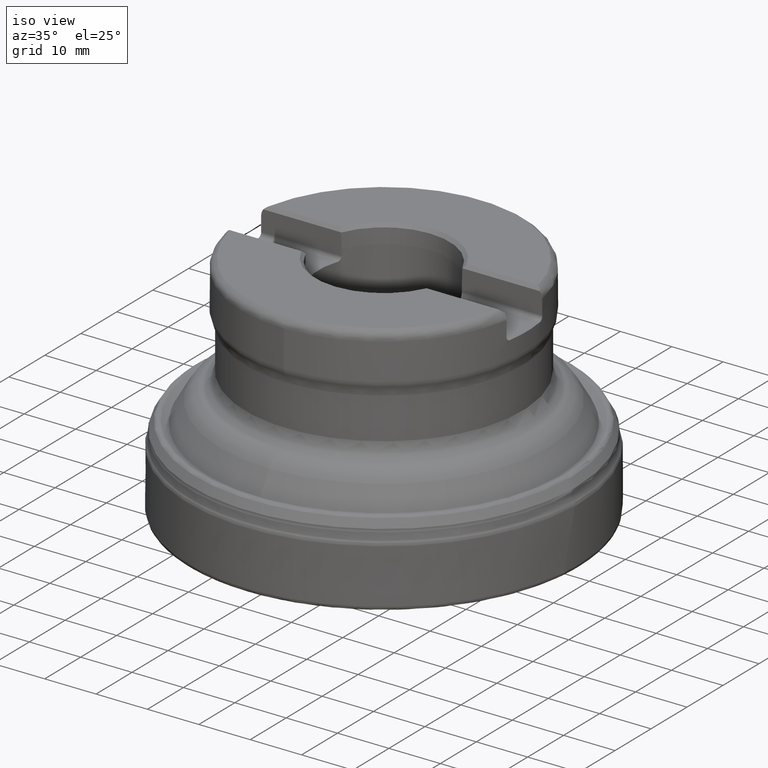
[diagram: clean part render]
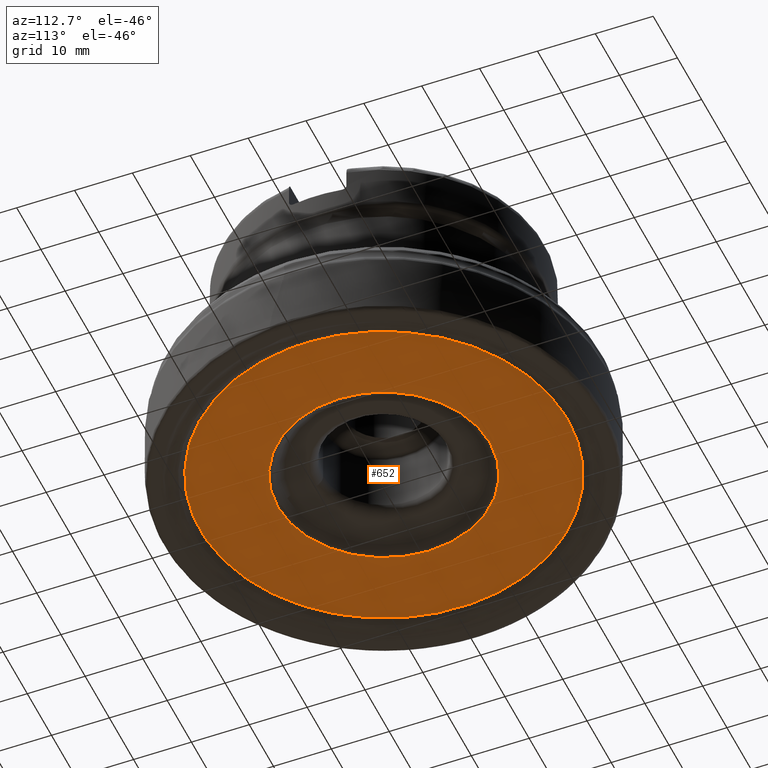
[diagram: tour spotlight — one face highlighted and labeled with its STEP entity id]
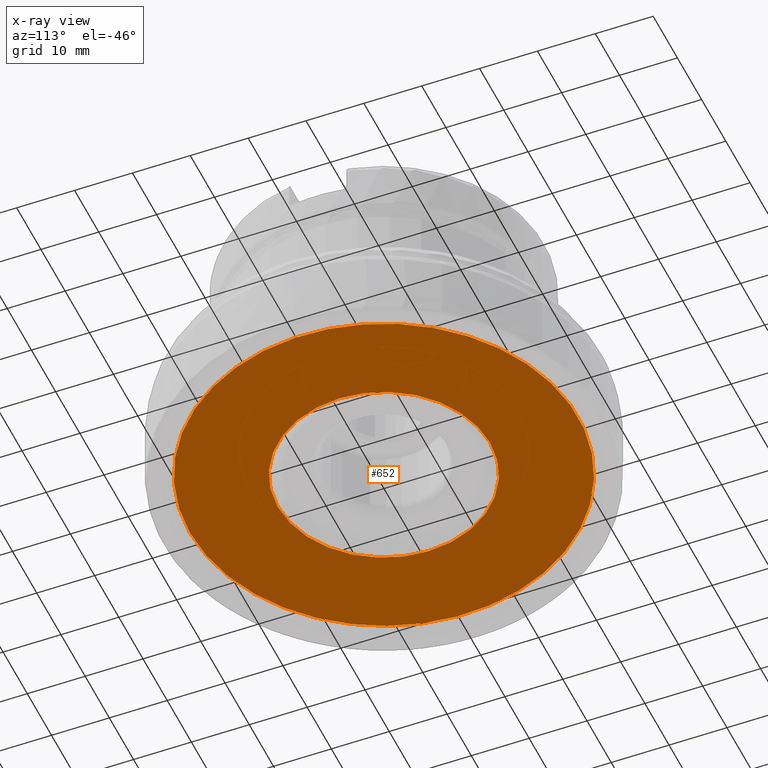
[diagram: x-ray of the same camera — body ghosted, this tour face saturated]
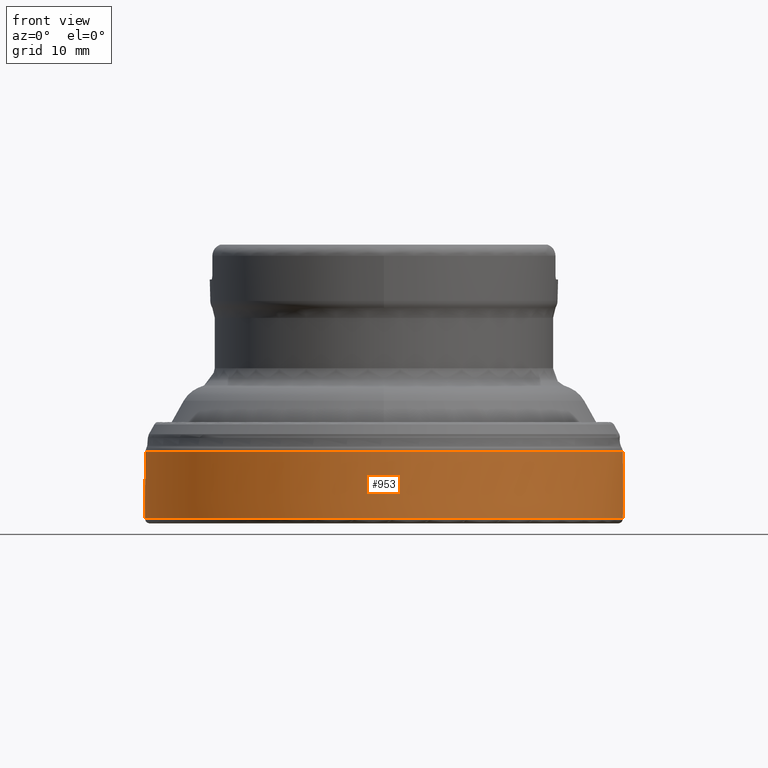
[diagram: tour spotlight — one face highlighted and labeled with its STEP entity id]
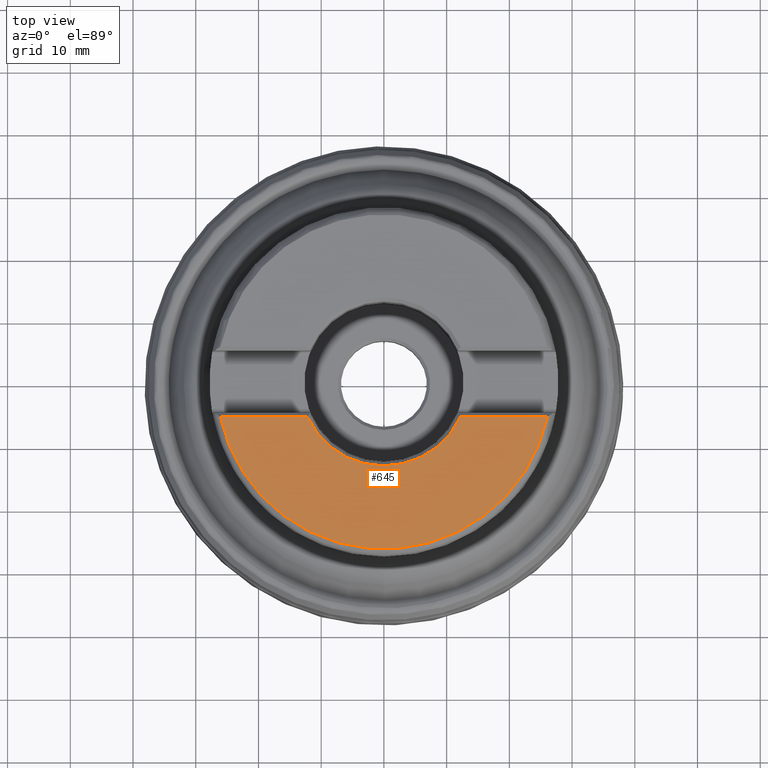
[diagram: tour spotlight — one face highlighted and labeled with its STEP entity id]
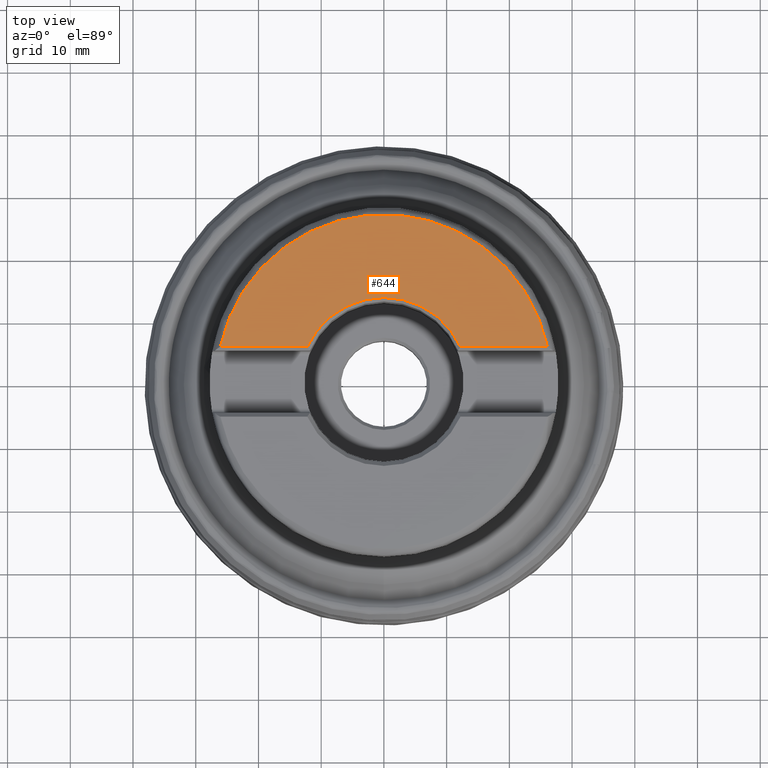
[diagram: tour spotlight — one face highlighted and labeled with its STEP entity id]
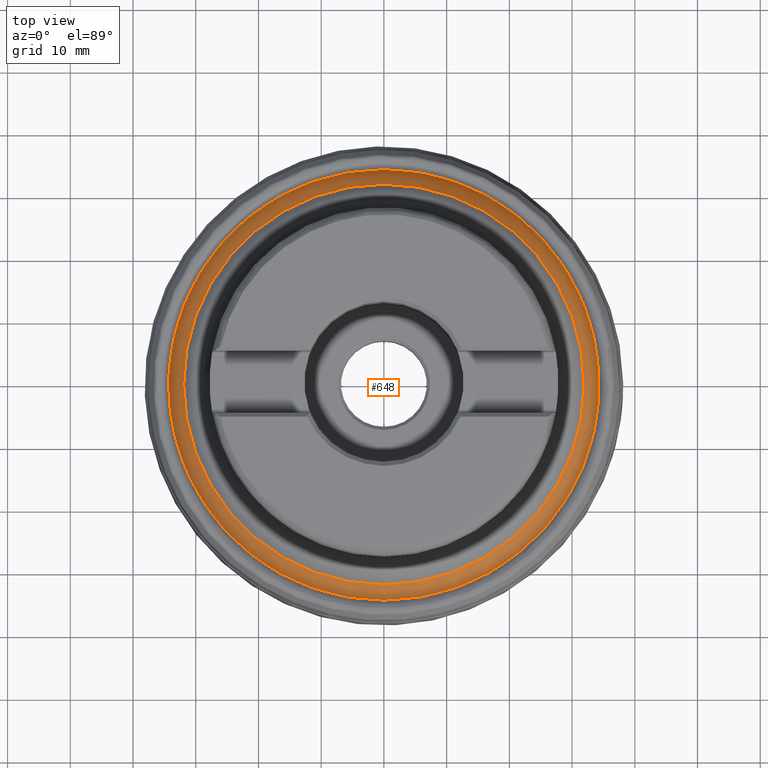
[diagram: tour spotlight — one face highlighted and labeled with its STEP entity id]
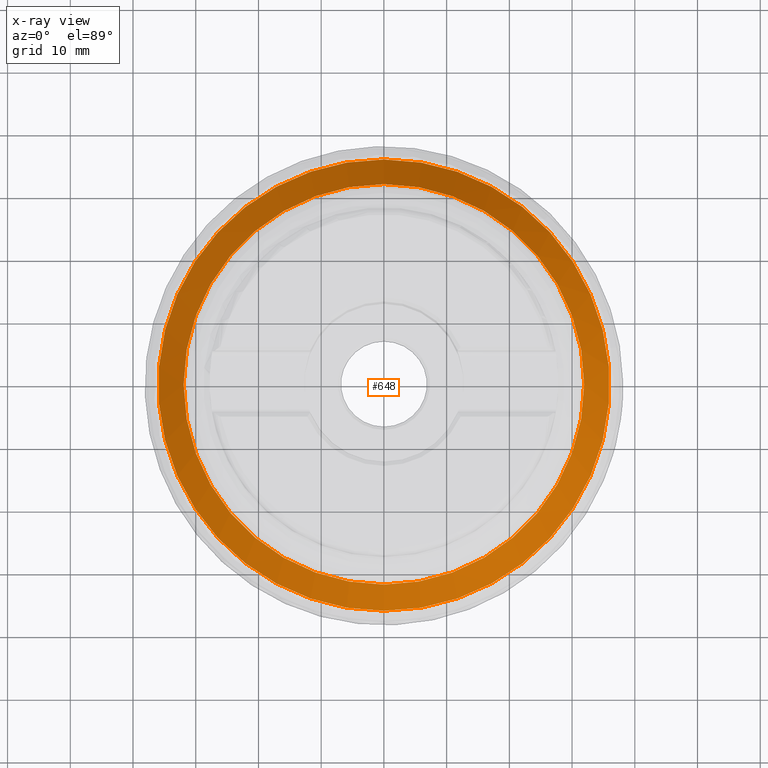
[diagram: x-ray of the same camera — body ghosted, this tour face saturated]
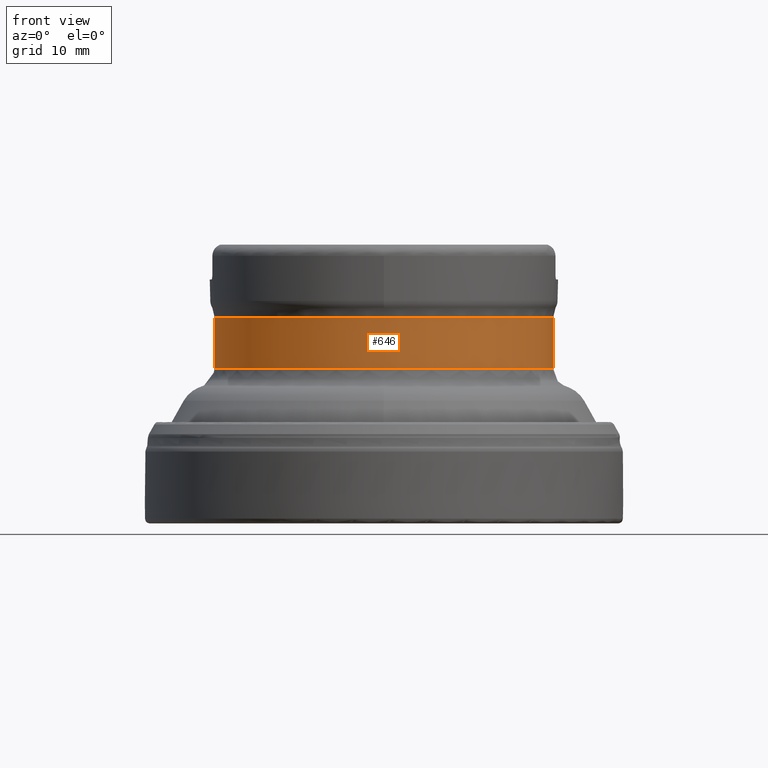
[diagram: tour spotlight — one face highlighted and labeled with its STEP entity id]
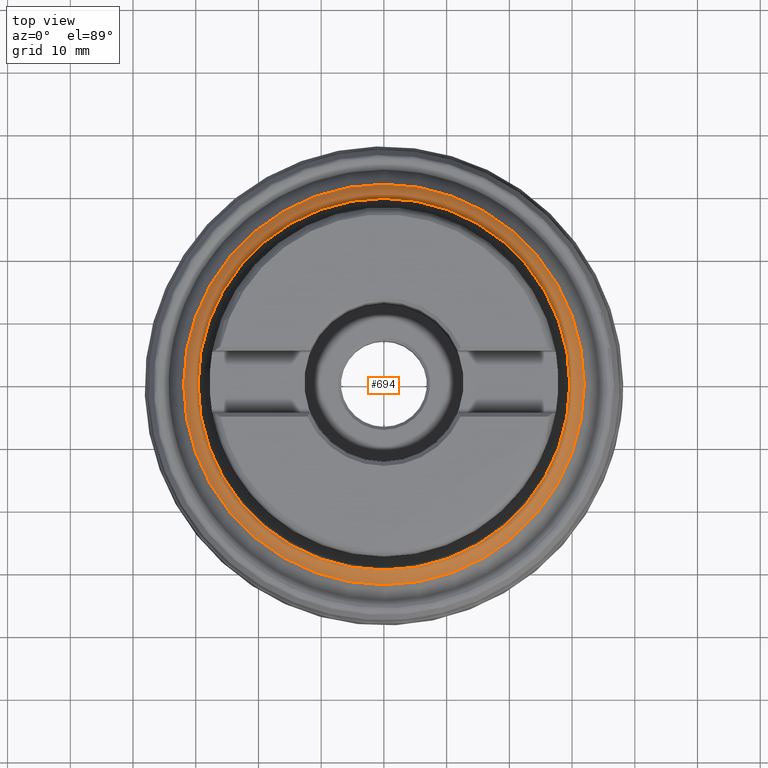
[diagram: tour spotlight — one face highlighted and labeled with its STEP entity id]
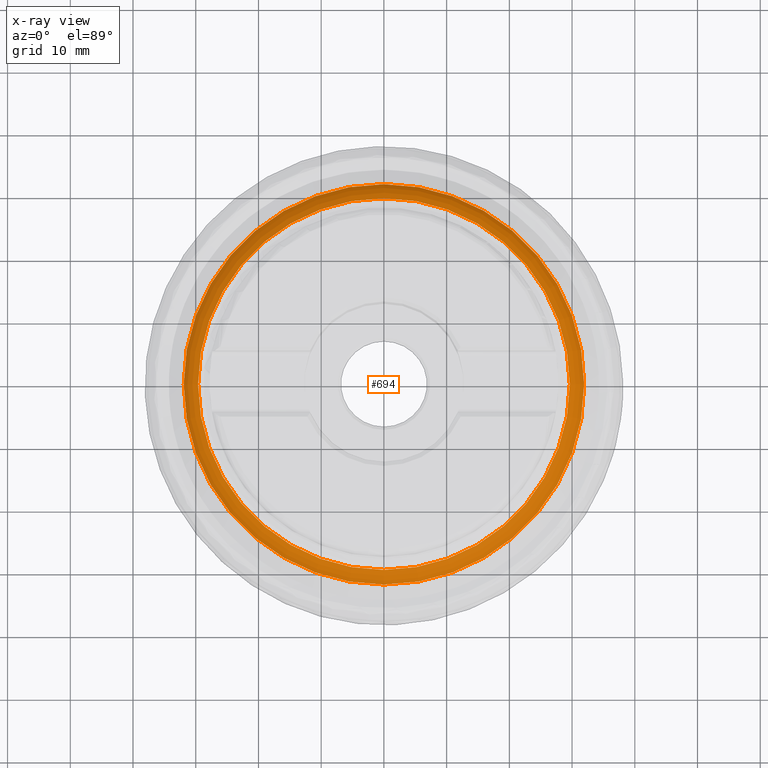
[diagram: x-ray of the same camera — body ghosted, this tour face saturated]
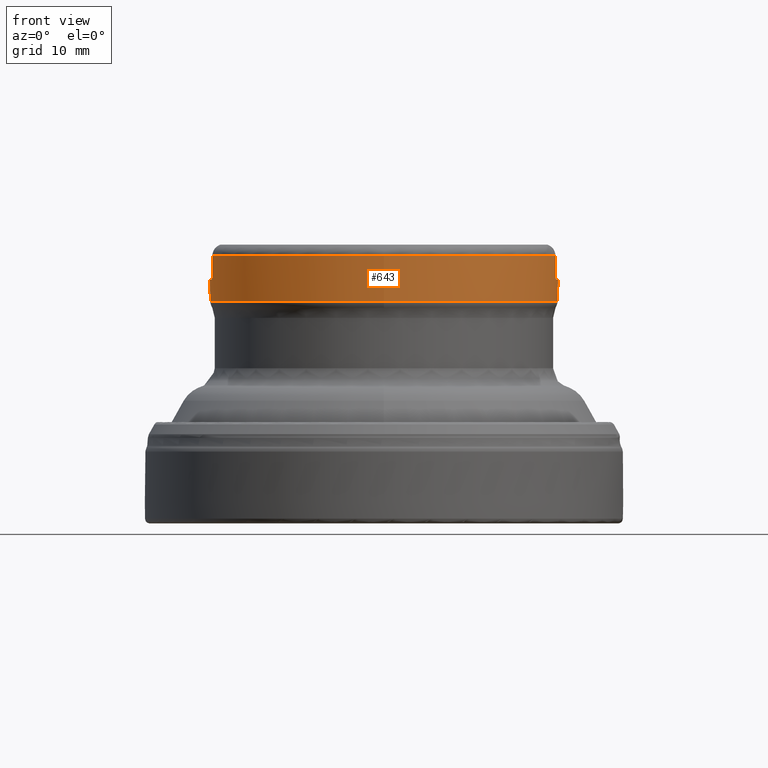
[diagram: tour spotlight — one face highlighted and labeled with its STEP entity id]
A machine part: a face-by-face anatomy tour. The part has 314 B-rep faces; the first image is the clean iso view, then the 8 largest visible faces are spotlighted one at a time (largest first), each with its STEP entity span.

Face 1 — auxiliary view, entity #652. An x-ray twin of the same camera follows (body ghosted, this face saturated) — the face is partly hidden behind the body. In plain terms, the highlighted planar face has unit normal (0, 0, 1).
Definition (entity closure, byte-faithful):
#412=PLANE('',#4643);
#523=FACE_BOUND('',#1241,.T.);
#524=FACE_BOUND('',#1242,.T.);
#652=ADVANCED_FACE('',(#523,#524),#412,.F.);
#1241=EDGE_LOOP('',(#1806));
#1242=EDGE_LOOP('',(#1807));
#1624=CIRCLE('',#4641,18.3706424674691);
#1625=CIRCLE('',#4642,33.5093366232884);
#1806=ORIENTED_EDGE('',*,*,#3510,.T.);
#1807=ORIENTED_EDGE('',*,*,#3511,.T.);
#3102=VERTEX_POINT('',#5824);
#3103=VERTEX_POINT('',#5826);
#3510=EDGE_CURVE('',#3102,#3102,#1624,.T.);
#3511=EDGE_CURVE('',#3103,#3103,#1625,.T.);
#4641=AXIS2_PLACEMENT_3D('',#5823,#4910,#4911);
#4642=AXIS2_PLACEMENT_3D('',#5825,#4912,#4913);
#4643=AXIS2_PLACEMENT_3D('',#5827,#4914,#4915);
#4910=DIRECTION('',(0.,1.17145536458252E-15,1.));
#4911=DIRECTION('',(0.,-1.,1.16856027508168E-15));
#4912=DIRECTION('',(0.,-1.17145536458252E-15,-1.));
#4913=DIRECTION('',(0.,-1.,1.17125919516707E-15));
#4914=DIRECTION('',(0.,1.17145536458252E-15,1.));
#4915=DIRECTION('',(0.,-1.,1.17137202715334E-15));
#5823=CARTESIAN_POINT('',(0.,1.64003751041553E-15,1.4));
#5824=CARTESIAN_POINT('',(0.,-18.3706424674691,1.40000000000002));
#5825=CARTESIAN_POINT('',(0.,1.64003751041553E-15,1.4));
#5826=CARTESIAN_POINT('',(0.,-33.5093366232884,1.40000000000004));
#5827=CARTESIAN_POINT('',(18.0392716175706,1.64003751041553E-15,1.4));

Face 2 — front view, entity #953. In plain terms, the highlighted face is a SurfaceOfRevolution surface.
Definition (entity closure, byte-faithful):
#127=SURFACE_OF_REVOLUTION('',#4606,#148);
#148=AXIS1_PLACEMENT('',#18013,#5344);
#637=FACE_BOUND('',#1599,.T.);
#638=FACE_BOUND('',#1600,.T.);
#953=ADVANCED_FACE('',(#637,#638),#127,.F.);
#1599=EDGE_LOOP('',(#3061));
#1600=EDGE_LOOP('',(#3062));
#1759=CIRCLE('',#4834,38.1000000951824);
#1760=CIRCLE('',#4835,38.1000004129046);
#3061=ORIENTED_EDGE('',*,*,#4119,.T.);
#3062=ORIENTED_EDGE('',*,*,#4120,.F.);
#3467=VERTEX_POINT('',#17984);
#3468=VERTEX_POINT('',#17998);
#4119=EDGE_CURVE('',#3467,#3467,#1759,.T.);
#4120=EDGE_CURVE('',#3468,#3468,#1760,.T.);
#4606=B_SPLINE_CURVE_WITH_KNOTS('',3,(#17999,#18000,#18001,#18002,#18003,
#18004,#18005,#18006,#18007,#18008,#18009,#18010,#18011,#18012),
 .UNSPECIFIED.,.F.,.F.,(4,1,1,1,1,1,1,1,1,1,1,4),(0.,0.228057409693129,
0.368730032744676,0.509402655796224,0.650075278847772,0.720411590373546,
0.755579746136432,0.790747901899319,0.861084213425093,0.931420524950867,
0.966588680713754,1.),.UNSPECIFIED.);
#4834=AXIS2_PLACEMENT_3D('',#17983,#5339,#5340);
#4835=AXIS2_PLACEMENT_3D('',#17997,#5342,#5343);
#5339=DIRECTION('',(0.,0.,1.));
#5340=DIRECTION('',(1.,0.,0.));
#5342=DIRECTION('',(0.,0.,1.));
#5343=DIRECTION('',(1.,0.,0.));
#5344=DIRECTION('',(0.,0.,1.));
#17983=CARTESIAN_POINT('',(0.,0.,0.763638183808748));
#17984=CARTESIAN_POINT('',(38.1000000951824,0.,0.763638183808748));
#17997=CARTESIAN_POINT('',(0.,0.,11.4134473905272));
#17998=CARTESIAN_POINT('',(38.1000004129046,0.,11.4134473905272));
#17999=CARTESIAN_POINT('',(38.0792544535389,-1.25713176025307,11.4134481846076));
#18000=CARTESIAN_POINT('',(38.0910770010358,-1.47314391306348,10.6071555489556));
#18001=CARTESIAN_POINT('',(38.0994425034923,-1.8224470051669,9.3033719367471));
#18002=CARTESIAN_POINT('',(38.0873105826813,-2.30510586479218,7.50226534857769));
#18003=CARTESIAN_POINT('',(38.0637772845571,-2.70489575012244,6.01025365777633));
#18004=CARTESIAN_POINT('',(38.0341731047803,-3.037877530312,4.76706333772712));
#18005=CARTESIAN_POINT('',(38.0085219739895,-3.27133516554227,3.89707648632783));
#18006=CARTESIAN_POINT('',(37.9924606913923,-3.40403319347722,3.39977589595972));
#18007=CARTESIAN_POINT('',(37.9758691189369,-3.52539738439389,2.89959315138185));
#18008=CARTESIAN_POINT('',(37.9542355341869,-3.65971900488694,2.27032472164362));
#18009=CARTESIAN_POINT('',(37.9319127410613,-3.76929013936204,1.63633199519545));
#18010=CARTESIAN_POINT('',(37.914168069154,-3.84025287477909,1.13309710331118));
#18011=CARTESIAN_POINT('',(37.9051353025801,-3.87519717960628,0.884668978133338));
#18012=CARTESIAN_POINT('',(37.9006685897176,-3.89221372811116,0.763638183808748));
#18013=CARTESIAN_POINT('',(0.,0.,0.));

Face 3 — top view, entity #645. In plain terms, the highlighted planar face has unit normal (0, 0, 1).
Definition (entity closure, byte-faithful):
#410=PLANE('',#4622);
#449=LINE('',#5790,#482);
#450=LINE('',#5791,#483);
#482=VECTOR('',#4870,1.);
#483=VECTOR('',#4871,1.);
#645=ADVANCED_FACE('',(#978),#410,.T.);
#978=FACE_OUTER_BOUND('',#1228,.T.);
#1228=EDGE_LOOP('',(#1790,#1791,#1792,#1793));
#1605=CIRCLE('',#4612,26.6717797887081);
#1611=CIRCLE('',#4621,13.4222226932211);
#1790=ORIENTED_EDGE('',*,*,#3495,.T.);
#1791=ORIENTED_EDGE('',*,*,#3496,.T.);
#1792=ORIENTED_EDGE('',*,*,#3475,.F.);
#1793=ORIENTED_EDGE('',*,*,#3497,.T.);
#3071=VERTEX_POINT('',#5658);
#3072=VERTEX_POINT('',#5659);
#3088=VERTEX_POINT('',#5788);
#3089=VERTEX_POINT('',#5789);
#3475=EDGE_CURVE('',#3071,#3072,#1605,.T.);
#3495=EDGE_CURVE('',#3088,#3089,#1611,.T.);
#3496=EDGE_CURVE('',#3089,#3072,#449,.T.);
#3497=EDGE_CURVE('',#3071,#3088,#450,.T.);
#4612=AXIS2_PLACEMENT_3D('',#5657,#4844,#4845);
#4621=AXIS2_PLACEMENT_3D('',#5787,#4868,#4869);
#4622=AXIS2_PLACEMENT_3D('',#5792,#4872,#4873);
#4844=DIRECTION('',(0.,-1.17145536458252E-15,-1.));
#4845=DIRECTION('',(0.,-1.,1.30079319019515E-15));
#4868=DIRECTION('',(0.,-1.17145536458252E-15,-1.));
#4869=DIRECTION('',(0.,-1.,1.03394110833993E-15));
#4870=DIRECTION('',(-1.,0.,0.));
#4871=DIRECTION('',(-1.,0.,0.));
#4872=DIRECTION('',(0.,1.17145536458252E-15,1.));
#4873=DIRECTION('',(0.,-1.,1.17267306976032E-15));
#5657=CARTESIAN_POINT('',(0.,5.20711909556932E-14,44.45));
#5658=CARTESIAN_POINT('',(26.0847582334462,-5.56499999999995,44.45));
#5659=CARTESIAN_POINT('',(-26.0847582334462,-5.56499999999995,44.45));
#5787=CARTESIAN_POINT('',(0.,5.20711909556932E-14,44.45));
#5788=CARTESIAN_POINT('',(12.2142063608906,-5.56499999999995,44.45));
#5789=CARTESIAN_POINT('',(-12.2142063608906,-5.56499999999995,44.45));
#5790=CARTESIAN_POINT('',(0.,-5.56499999999995,44.45));
#5791=CARTESIAN_POINT('',(0.,-5.56499999999995,44.45));
#5792=CARTESIAN_POINT('',(0.,5.20711909556932E-14,44.45));

Face 4 — top view, entity #644. In plain terms, the highlighted planar face has unit normal (0, 0, 1).
Definition (entity closure, byte-faithful):
#409=PLANE('',#4620);
#447=LINE('',#5781,#480);
#448=LINE('',#5785,#481);
#480=VECTOR('',#4862,1.);
#481=VECTOR('',#4865,1.);
#644=ADVANCED_FACE('',(#977),#409,.T.);
#977=FACE_OUTER_BOUND('',#1227,.T.);
#1227=EDGE_LOOP('',(#1786,#1787,#1788,#1789));
#1603=CIRCLE('',#4609,26.6717797887081);
#1610=CIRCLE('',#4619,13.4222226932211);
#1786=ORIENTED_EDGE('',*,*,#3471,.F.);
#1787=ORIENTED_EDGE('',*,*,#3492,.T.);
#1788=ORIENTED_EDGE('',*,*,#3493,.T.);
#1789=ORIENTED_EDGE('',*,*,#3494,.T.);
#3067=VERTEX_POINT('',#5633);
#3068=VERTEX_POINT('',#5635);
#3086=VERTEX_POINT('',#5782);
#3087=VERTEX_POINT('',#5784);
#3471=EDGE_CURVE('',#3067,#3068,#1603,.T.);
#3492=EDGE_CURVE('',#3067,#3086,#447,.T.);
#3493=EDGE_CURVE('',#3086,#3087,#1610,.T.);
#3494=EDGE_CURVE('',#3087,#3068,#448,.T.);
#4609=AXIS2_PLACEMENT_3D('',#5634,#4838,#4839);
#4619=AXIS2_PLACEMENT_3D('',#5783,#4863,#4864);
#4620=AXIS2_PLACEMENT_3D('',#5786,#4866,#4867);
#4838=DIRECTION('',(0.,-1.17145536458252E-15,-1.));
#4839=DIRECTION('',(0.,-1.,1.30079319019515E-15));
#4862=DIRECTION('',(1.,0.,0.));
#4863=DIRECTION('',(0.,-1.17145536458252E-15,-1.));
#4864=DIRECTION('',(0.,-1.,1.03394110833993E-15));
#4865=DIRECTION('',(1.,0.,0.));
#4866=DIRECTION('',(0.,1.17145536458252E-15,1.));
#4867=DIRECTION('',(0.,-1.,1.17267306976032E-15));
#5633=CARTESIAN_POINT('',(-26.0847582334462,5.56500000000005,44.45));
#5634=CARTESIAN_POINT('',(0.,5.20711909556932E-14,44.45));
#5635=CARTESIAN_POINT('',(26.0847582334462,5.56500000000005,44.45));
#5781=CARTESIAN_POINT('',(0.,5.56500000000005,44.45));
#5782=CARTESIAN_POINT('',(-12.2142063608906,5.56500000000005,44.45));
#5783=CARTESIAN_POINT('',(0.,5.20711909556932E-14,44.45));
#5784=CARTESIAN_POINT('',(12.2142063608906,5.56500000000005,44.45));
#5785=CARTESIAN_POINT('',(0.,5.56500000000005,44.45));
#5786=CARTESIAN_POINT('',(0.,5.20711909556932E-14,44.45));

Face 5 — top view, entity #648. An x-ray twin of the same camera follows (body ghosted, this face saturated) — the face is partly hidden behind the body. In plain terms, the highlighted conical surface has half-angle 30 deg.
Definition (entity closure, byte-faithful):
#397=CONICAL_SURFACE('',#4631,36.1161825423602,30.0000000000001);
#515=FACE_BOUND('',#1233,.T.);
#516=FACE_BOUND('',#1234,.T.);
#648=ADVANCED_FACE('',(#515,#516),#397,.T.);
#1233=EDGE_LOOP('',(#1798));
#1234=EDGE_LOOP('',(#1799));
#1616=CIRCLE('',#4629,31.9284817829424);
#1617=CIRCLE('',#4630,35.9845300447728);
#1798=ORIENTED_EDGE('',*,*,#3502,.T.);
#1799=ORIENTED_EDGE('',*,*,#3503,.T.);
#3094=VERTEX_POINT('',#5804);
#3095=VERTEX_POINT('',#5806);
#3502=EDGE_CURVE('',#3094,#3094,#1616,.T.);
#3503=EDGE_CURVE('',#3095,#3095,#1617,.T.);
#4629=AXIS2_PLACEMENT_3D('',#5803,#4886,#4887);
#4630=AXIS2_PLACEMENT_3D('',#5805,#4888,#4889);
#4631=AXIS2_PLACEMENT_3D('',#5807,#4890,#4891);
#4886=DIRECTION('',(0.,-1.17145536458252E-15,-1.));
#4887=DIRECTION('',(0.,-1.,1.19529380478963E-15));
#4888=DIRECTION('',(0.,1.17145536458252E-15,1.));
#4889=DIRECTION('',(0.,-1.,1.1569794956789E-15));
#4890=DIRECTION('',(0.,-1.17145536458252E-15,-1.));
#4891=DIRECTION('',(0.,1.,-1.11695720454849E-15));
#5803=CARTESIAN_POINT('',(0.,2.29058304597283E-14,19.5533104822063));
#5804=CARTESIAN_POINT('',(0.,-31.9284817829424,19.5533104822063));
#5805=CARTESIAN_POINT('',(0.,1.46760265627005E-14,12.5280288147647));
#5806=CARTESIAN_POINT('',(0.,-35.9845300447728,12.5280288147647));
#5807=CARTESIAN_POINT('',(0.,1.4408900984365E-14,12.3));

Face 6 — front view, entity #646. In plain terms, the highlighted cylindrical surface (bore or boss wall) has radius 27 mm, axis along (0, 0, 1).
Definition (entity closure, byte-faithful):
#433=CYLINDRICAL_SURFACE('',#4625,27.);
#511=FACE_BOUND('',#1229,.T.);
#512=FACE_BOUND('',#1230,.T.);
#646=ADVANCED_FACE('',(#511,#512),#433,.T.);
#1229=EDGE_LOOP('',(#1794));
#1230=EDGE_LOOP('',(#1795));
#1612=CIRCLE('',#4623,27.);
#1613=CIRCLE('',#4624,27.);
#1794=ORIENTED_EDGE('',*,*,#3498,.T.);
#1795=ORIENTED_EDGE('',*,*,#3499,.T.);
#3090=VERTEX_POINT('',#5794);
#3091=VERTEX_POINT('',#5796);
#3498=EDGE_CURVE('',#3090,#3090,#1612,.T.);
#3499=EDGE_CURVE('',#3091,#3091,#1613,.T.);
#4623=AXIS2_PLACEMENT_3D('',#5793,#4874,#4875);
#4624=AXIS2_PLACEMENT_3D('',#5795,#4876,#4877);
#4625=AXIS2_PLACEMENT_3D('',#5797,#4878,#4879);
#4874=DIRECTION('',(0.,1.17145536458252E-15,1.));
#4875=DIRECTION('',(0.,1.,-1.15648231731787E-15));
#4876=DIRECTION('',(0.,-1.17145536458252E-15,-1.));
#4877=DIRECTION('',(0.,1.,-1.28498035257541E-15));
#4878=DIRECTION('',(0.,1.17145536458252E-15,1.));
#4879=DIRECTION('',(0.,-1.,1.17145536458252E-15));
#5793=CARTESIAN_POINT('',(0.,2.89831169991839E-14,24.7411193592619));
#5794=CARTESIAN_POINT('',(0.,27.,24.7411193592619));
#5795=CARTESIAN_POINT('',(0.,3.83833150449937E-14,32.7654951314961));
#5796=CARTESIAN_POINT('',(0.,27.,32.765495131496));
#5797=CARTESIAN_POINT('',(0.,0.,0.));

Face 7 — top view, entity #694. An x-ray twin of the same camera follows (body ghosted, this face saturated) — the face is partly hidden behind the body. In plain terms, the highlighted toroidal blend (fillet) surface has major radius 27.5984 mm and minor (blend) radius 5 mm.
Definition (entity closure, byte-faithful):
#571=FACE_BOUND('',#1307,.T.);
#572=FACE_BOUND('',#1308,.T.);
#694=ADVANCED_FACE('',(#571,#572),#969,.T.);
#969=TOROIDAL_SURFACE('',#4709,27.5983547640203,5.);
#1307=EDGE_LOOP('',(#1953));
#1308=EDGE_LOOP('',(#1954));
#1614=CIRCLE('',#4626,29.6320379793993);
#1616=CIRCLE('',#4629,31.9284817829424);
#1953=ORIENTED_EDGE('',*,*,#3500,.F.);
#1954=ORIENTED_EDGE('',*,*,#3502,.F.);
#3092=VERTEX_POINT('',#5799);
#3094=VERTEX_POINT('',#5804);
#3500=EDGE_CURVE('',#3092,#3092,#1614,.T.);
#3502=EDGE_CURVE('',#3094,#3094,#1616,.T.);
#4626=AXIS2_PLACEMENT_3D('',#5798,#4880,#4881);
#4629=AXIS2_PLACEMENT_3D('',#5803,#4886,#4887);
#4709=AXIS2_PLACEMENT_3D('',#6071,#5062,#5063);
#4880=DIRECTION('',(0.,1.17145536458252E-15,1.));
#4881=DIRECTION('',(0.,-1.,1.17084317803778E-15));
#4886=DIRECTION('',(0.,-1.17145536458252E-15,-1.));
#4887=DIRECTION('',(0.,-1.,1.19529380478963E-15));
#5062=DIRECTION('',(0.,1.17145536458252E-15,1.));
#5063=DIRECTION('',(0.,-1.,1.17073136812452E-15));
#5798=CARTESIAN_POINT('',(0.,2.53280806839991E-14,21.6210377704193));
#5799=CARTESIAN_POINT('',(0.,-29.6320379793992,21.6210377704193));
#5803=CARTESIAN_POINT('',(0.,2.29058304597283E-14,19.5533104822063));
#5804=CARTESIAN_POINT('',(0.,-31.9284817829424,19.5533104822063));
#6071=CARTESIAN_POINT('',(0.,1.99771920482719E-14,17.0533104822063));

Face 8 — front view, entity #643. In plain terms, the highlighted cylindrical surface (bore or boss wall) has radius 27.8 mm, axis along (0, 0, 1).
Definition (entity closure, byte-faithful):
#432=CYLINDRICAL_SURFACE('',#4618,27.8);
#443=LINE('',#5702,#476);
#444=LINE('',#5740,#477);
#445=LINE('',#5741,#478);
#446=LINE('',#5779,#479);
#476=VECTOR('',#4852,1.);
#477=VECTOR('',#4855,1.);
#478=VECTOR('',#4856,1.);
#479=VECTOR('',#4859,1.);
#509=FACE_BOUND('',#1225,.T.);
#510=FACE_BOUND('',#1226,.T.);
#643=ADVANCED_FACE('',(#509,#510),#432,.T.);
#1225=EDGE_LOOP('',(#1773));
#1226=EDGE_LOOP('',(#1774,#1775,#1776,#1777,#1778,#1779,#1780,#1781,#1782,
#1783,#1784,#1785));
#1604=CIRCLE('',#4610,27.8);
#1606=CIRCLE('',#4613,27.8);
#1607=CIRCLE('',#4615,27.8);
#1608=CIRCLE('',#4616,27.8);
#1609=CIRCLE('',#4617,27.8);
#1773=ORIENTED_EDGE('',*,*,#3481,.T.);
#1774=ORIENTED_EDGE('',*,*,#3482,.T.);
#1775=ORIENTED_EDGE('',*,*,#3483,.F.);
#1776=ORIENTED_EDGE('',*,*,#3484,.T.);
#1777=ORIENTED_EDGE('',*,*,#3485,.F.);
#1778=ORIENTED_EDGE('',*,*,#3486,.T.);
#1779=ORIENTED_EDGE('',*,*,#3478,.T.);
#1780=ORIENTED_EDGE('',*,*,#3487,.T.);
#1781=ORIENTED_EDGE('',*,*,#3488,.F.);
#1782=ORIENTED_EDGE('',*,*,#3489,.T.);
#1783=ORIENTED_EDGE('',*,*,#3490,.F.);
#1784=ORIENTED_EDGE('',*,*,#3491,.T.);
#1785=ORIENTED_EDGE('',*,*,#3474,.T.);
#3065=VERTEX_POINT('',#5624);
#3070=VERTEX_POINT('',#5654);
#3074=VERTEX_POINT('',#5678);
#3075=VERTEX_POINT('',#5680);
#3077=VERTEX_POINT('',#5701);
#3078=VERTEX_POINT('',#5703);
#3079=VERTEX_POINT('',#5720);
#3080=VERTEX_POINT('',#5722);
#3081=VERTEX_POINT('',#5739);
#3082=VERTEX_POINT('',#5742);
#3083=VERTEX_POINT('',#5759);
#3084=VERTEX_POINT('',#5761);
#3085=VERTEX_POINT('',#5778);
#3474=EDGE_CURVE('',#3065,#3070,#1604,.T.);
#3478=EDGE_CURVE('',#3075,#3074,#1606,.T.);
#3481=EDGE_CURVE('',#3077,#3077,#1607,.T.);
#3482=EDGE_CURVE('',#3070,#3078,#443,.T.);
#3483=EDGE_CURVE('',#3079,#3078,#4150,.T.);
#3484=EDGE_CURVE('',#3079,#3080,#1608,.T.);
#3485=EDGE_CURVE('',#3081,#3080,#4151,.T.);
#3486=EDGE_CURVE('',#3081,#3075,#444,.T.);
#3487=EDGE_CURVE('',#3074,#3082,#445,.T.);
#3488=EDGE_CURVE('',#3083,#3082,#4152,.T.);
#3489=EDGE_CURVE('',#3083,#3084,#1609,.T.);
#3490=EDGE_CURVE('',#3085,#3084,#4153,.T.);
#3491=EDGE_CURVE('',#3085,#3065,#446,.T.);
#4150=B_SPLINE_CURVE_WITH_KNOTS('',3,(#5704,#5705,#5706,#5707,#5708,#5709,
#5710,#5711,#5712,#5713,#5714,#5715,#5716,#5717,#5718,#5719),
 .UNSPECIFIED.,.F.,.F.,(4,3,3,3,3,4),(0.,0.149589495531793,0.365364152299094,
0.577966141074219,0.788930836508111,1.),.UNSPECIFIED.);
#4151=B_SPLINE_CURVE_WITH_KNOTS('',3,(#5723,#5724,#5725,#5726,#5727,#5728,
#5729,#5730,#5731,#5732,#5733,#5734,#5735,#5736,#5737,#5738),
 .UNSPECIFIED.,.F.,.F.,(4,3,3,3,3,4),(0.,0.130656748135469,0.345594992643797,
0.563263507002769,0.781650788815204,1.),.UNSPECIFIED.);
#4152=B_SPLINE_CURVE_WITH_KNOTS('',3,(#5743,#5744,#5745,#5746,#5747,#5748,
#5749,#5750,#5751,#5752,#5753,#5754,#5755,#5756,#5757,#5758),
 .UNSPECIFIED.,.F.,.F.,(4,3,3,3,3,4),(0.,0.149589495531793,0.365364152299095,
0.57796614107422,0.788930836508111,1.),.UNSPECIFIED.);
#4153=B_SPLINE_CURVE_WITH_KNOTS('',3,(#5762,#5763,#5764,#5765,#5766,#5767,
#5768,#5769,#5770,#5771,#5772,#5773,#5774,#5775,#5776,#5777),
 .UNSPECIFIED.,.F.,.F.,(4,3,3,3,3,4),(0.,0.130656748135469,0.345594992643803,
0.563263507002777,0.781650788815207,1.),.UNSPECIFIED.);
#4610=AXIS2_PLACEMENT_3D('',#5655,#4840,#4841);
#4613=AXIS2_PLACEMENT_3D('',#5679,#4846,#4847);
#4615=AXIS2_PLACEMENT_3D('',#5700,#4850,#4851);
#4616=AXIS2_PLACEMENT_3D('',#5721,#4853,#4854);
#4617=AXIS2_PLACEMENT_3D('',#5760,#4857,#4858);
#4618=AXIS2_PLACEMENT_3D('',#5780,#4860,#4861);
#4840=DIRECTION('',(0.,-1.17145536458252E-15,-1.));
#4841=DIRECTION('',(0.,1.,-1.24800250070274E-15));
#4846=DIRECTION('',(0.,-1.17145536458252E-15,-1.));
#4847=DIRECTION('',(0.,1.,-1.24800250070274E-15));
#4850=DIRECTION('',(0.,1.17145536458252E-15,1.));
#4851=DIRECTION('',(0.,-1.,1.24800250070274E-15));
#4852=DIRECTION('',(0.,-1.17145536458252E-15,-1.));
#4853=DIRECTION('',(0.,-1.17145536458252E-15,-1.));
#4854=DIRECTION('',(0.,-1.,1.24800250070274E-15));
#4855=DIRECTION('',(0.,1.17145536458252E-15,1.));
#4856=DIRECTION('',(0.,-1.17145536458252E-15,-1.));
#4857=DIRECTION('',(0.,-1.17145536458252E-15,-1.));
#4858=DIRECTION('',(0.,-1.,1.24800250070274E-15));
#4859=DIRECTION('',(0.,1.17145536458252E-15,1.));
#4860=DIRECTION('',(0.,1.17145536458252E-15,1.));
#4861=DIRECTION('',(0.,-1.,1.17145536458252E-15));
#5624=CARTESIAN_POINT('',(-27.3530395934346,4.96500000000005,42.65));
#5654=CARTESIAN_POINT('',(27.3530395934346,4.96500000000005,42.65));
#5655=CARTESIAN_POINT('',(0.,4.99625712994447E-14,42.65));
#5678=CARTESIAN_POINT('',(-27.3530395934346,-4.96499999999995,42.65));
#5679=CARTESIAN_POINT('',(0.,4.99625712994447E-14,42.65));
#5680=CARTESIAN_POINT('',(27.3530395934346,-4.96499999999995,42.65));
#5700=CARTESIAN_POINT('',(0.,4.15613937822341E-14,35.4784271247462));
#5701=CARTESIAN_POINT('',(0.,-27.8,35.4784271247462));
#5702=CARTESIAN_POINT('',(27.3530395934346,4.96500000000001,-4.8592867675717E-15));
#5703=CARTESIAN_POINT('',(27.3530395934346,4.96500000000004,39.69));
#5704=CARTESIAN_POINT('',(27.4862288246314,4.16500000000004,38.89));
#5705=CARTESIAN_POINT('',(27.4767612980382,4.22747937631335,38.89));
#5706=CARTESIAN_POINT('',(27.4670123714279,4.29033957329675,38.8974152124734));
#5707=CARTESIAN_POINT('',(27.4573867560448,4.35108176537469,38.9119424336239));
#5708=CARTESIAN_POINT('',(27.4436022201549,4.4380687156529,38.9327464023427));
#5709=CARTESIAN_POINT('',(27.429751472875,4.52267300335135,38.9688204835061));
#5710=CARTESIAN_POINT('',(27.4171151867849,4.59802075186354,39.0173239795744));
#5711=CARTESIAN_POINT('',(27.4046620047054,4.67227668630608,39.0651246437668));
#5712=CARTESIAN_POINT('',(27.3930635749251,4.73953134181815,39.126283949769));
#5713=CARTESIAN_POINT('',(27.3834781160581,4.79428057870725,39.1960304126144));
#5714=CARTESIAN_POINT('',(27.3739670457912,4.8486049304503,39.26523560333));
#5715=CARTESIAN_POINT('',(27.3661943475718,4.89206187682854,39.3447682563695));
#5716=CARTESIAN_POINT('',(27.3609958358265,4.92096605067377,39.4282456681757));
#5717=CARTESIAN_POINT('',(27.355795884701,4.94987822759739,39.5117461934698));
#5718=CARTESIAN_POINT('',(27.3530395934346,4.96500000000004,39.6014828198));
#5719=CARTESIAN_POINT('',(27.3530395934346,4.96500000000004,39.69));
#5720=CARTESIAN_POINT('',(27.4862288246314,4.16500000000004,38.89));
#5721=CARTESIAN_POINT('',(0.,4.55578991286144E-14,38.89));
#5722=CARTESIAN_POINT('',(27.4862288246314,-4.16499999999995,38.89));
#5723=CARTESIAN_POINT('',(27.3530395934346,-4.96499999999995,39.69));
#5724=CARTESIAN_POINT('',(27.3530395934346,-4.96499999999995,39.6347065742715));
#5725=CARTESIAN_POINT('',(27.3540938691232,-4.95920181638232,39.5791100033551));
#5726=CARTESIAN_POINT('',(27.3561545553782,-4.94780839789294,39.5250423927543));
#5727=CARTESIAN_POINT('',(27.3595133791822,-4.92923764985327,39.4369146745888));
#5728=CARTESIAN_POINT('',(27.3656754733331,-4.89510468392516,39.3508812239837));
#5729=CARTESIAN_POINT('',(27.3739371531161,-4.84846003770786,39.2742087340308));
#5730=CARTESIAN_POINT('',(27.3823031090762,-4.80122665826448,39.1965685093854));
#5731=CARTESIAN_POINT('',(27.393047436125,-4.73983375917746,39.1263050176997));
#5732=CARTESIAN_POINT('',(27.4050099640804,-4.66962834373955,39.0692341546971));
#5733=CARTESIAN_POINT('',(27.4170138199474,-4.59918038398189,39.011966124374));
#5734=CARTESIAN_POINT('',(27.4305700953269,-4.5178860092289,38.9663507764256));
#5735=CARTESIAN_POINT('',(27.4443505378966,-4.43256399311454,38.9360706202909));
#5736=CARTESIAN_POINT('',(27.4581298000349,-4.34724928567559,38.9057930579513));
#5737=CARTESIAN_POINT('',(27.472509685048,-4.25553719324552,38.89));
#5738=CARTESIAN_POINT('',(27.4862288246314,-4.16499999999995,38.89));
#5739=CARTESIAN_POINT('',(27.3530395934346,-4.96499999999995,39.69));
#5740=CARTESIAN_POINT('',(27.3530395934346,-4.96499999999998,3.42380309120087E-15));
#5741=CARTESIAN_POINT('',(-27.3530395934346,-4.96499999999998,3.42380309120087E-15));
#5742=CARTESIAN_POINT('',(-27.3530395934346,-4.96499999999995,39.69));
#5743=CARTESIAN_POINT('',(-27.4862288246314,-4.16499999999995,38.89));
#5744=CARTESIAN_POINT('',(-27.4767612980382,-4.22747937631326,38.89));
#5745=CARTESIAN_POINT('',(-27.4670123714279,-4.29033957329666,38.8974152124734));
#5746=CARTESIAN_POINT('',(-27.4573867560448,-4.3510817653746,38.9119424336239));
#5747=CARTESIAN_POINT('',(-27.4436022201549,-4.43806871565281,38.9327464023427));
#5748=CARTESIAN_POINT('',(-27.429751472875,-4.52267300335126,38.9688204835061));
#5749=CARTESIAN_POINT('',(-27.4171151867849,-4.59802075186345,39.0173239795744));
#5750=CARTESIAN_POINT('',(-27.4046620047054,-4.67227668630599,39.0651246437668));
#5751=CARTESIAN_POINT('',(-27.3930635749251,-4.73953134181807,39.126283949769));
#5752=CARTESIAN_POINT('',(-27.3834781160581,-4.79428057870716,39.1960304126144));
#5753=CARTESIAN_POINT('',(-27.3739670457912,-4.84860493045021,39.26523560333));
#5754=CARTESIAN_POINT('',(-27.3661943475718,-4.89206187682846,39.3447682563695));
#5755=CARTESIAN_POINT('',(-27.3609958358265,-4.92096605067369,39.4282456681757));
#5756=CARTESIAN_POINT('',(-27.355795884701,-4.9498782275973,39.5117461934698));
#5757=CARTESIAN_POINT('',(-27.3530395934346,-4.96499999999995,39.6014828198));
#5758=CARTESIAN_POINT('',(-27.3530395934346,-4.96499999999995,39.69));
#5759=CARTESIAN_POINT('',(-27.4862288246314,-4.16499999999995,38.89));
#5760=CARTESIAN_POINT('',(0.,4.55578991286144E-14,38.89));
#5761=CARTESIAN_POINT('',(-27.4862288246314,4.16500000000004,38.89));
#5762=CARTESIAN_POINT('',(-27.3530395934346,4.96500000000004,39.69));
#5763=CARTESIAN_POINT('',(-27.3530395934346,4.96500000000004,39.6347065742715));
#5764=CARTESIAN_POINT('',(-27.3540938691232,4.95920181638241,39.5791100033551));
#5765=CARTESIAN_POINT('',(-27.3561545553782,4.94780839789303,39.5250423927543));
#5766=CARTESIAN_POINT('',(-27.3595133791822,4.92923764985336,39.4369146745888));
#5767=CARTESIAN_POINT('',(-27.3656754733331,4.89510468392525,39.3508812239837));
#5768=CARTESIAN_POINT('',(-27.3739371531161,4.84846003770795,39.2742087340307));
#5769=CARTESIAN_POINT('',(-27.3823031090762,4.80122665826457,39.1965685093853));
#5770=CARTESIAN_POINT('',(-27.393047436125,4.73983375917755,39.1263050176997));
#5771=CARTESIAN_POINT('',(-27.4050099640804,4.66962834373963,39.0692341546971));
#5772=CARTESIAN_POINT('',(-27.4170138199474,4.59918038398198,39.011966124374));
#5773=CARTESIAN_POINT('',(-27.4305700953269,4.51788600922899,38.9663507764256));
#5774=CARTESIAN_POINT('',(-27.4443505378966,4.43256399311463,38.9360706202909));
#5775=CARTESIAN_POINT('',(-27.4581298000349,4.34724928567568,38.9057930579513));
#5776=CARTESIAN_POINT('',(-27.472509685048,4.25553719324561,38.89));
#5777=CARTESIAN_POINT('',(-27.4862288246314,4.16500000000004,38.89));
#5778=CARTESIAN_POINT('',(-27.3530395934346,4.96500000000004,39.69));
#5779=CARTESIAN_POINT('',(-27.3530395934346,4.96500000000001,-4.8592867675717E-15));
#5780=CARTESIAN_POINT('',(0.,0.,0.));